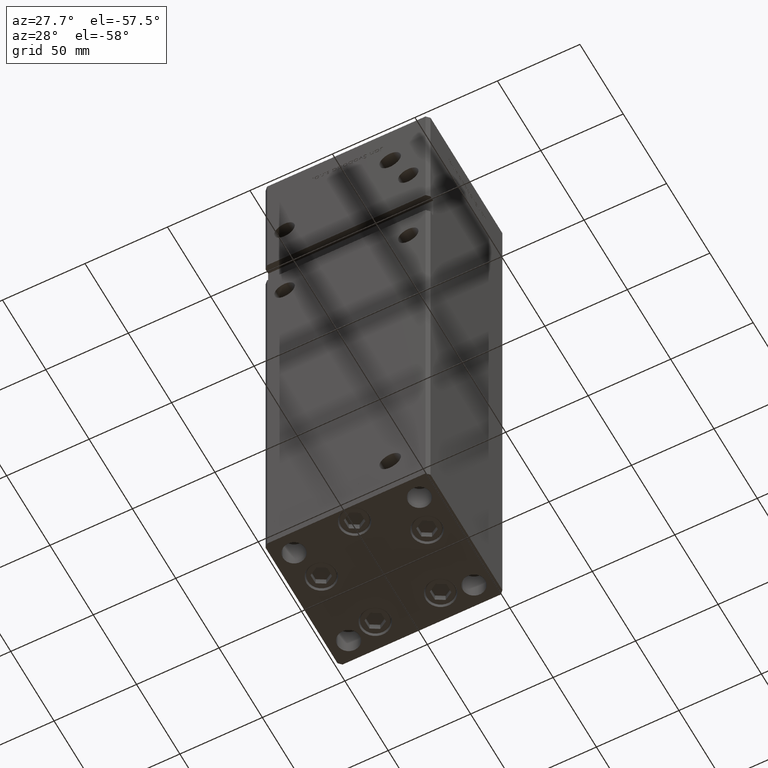
[diagram: clean part render]
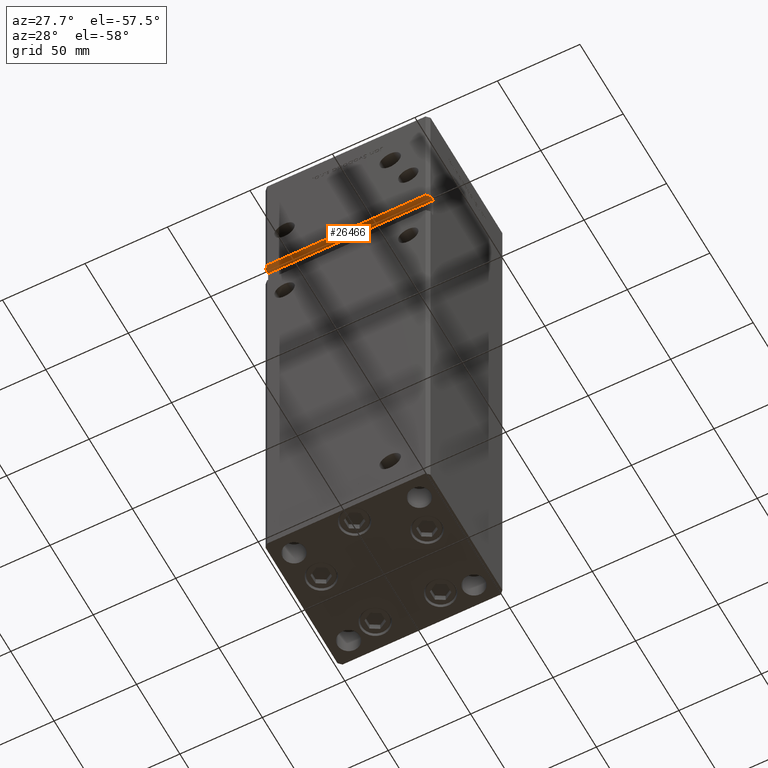
[diagram: same view with one face highlighted and labeled with its STEP entity id]
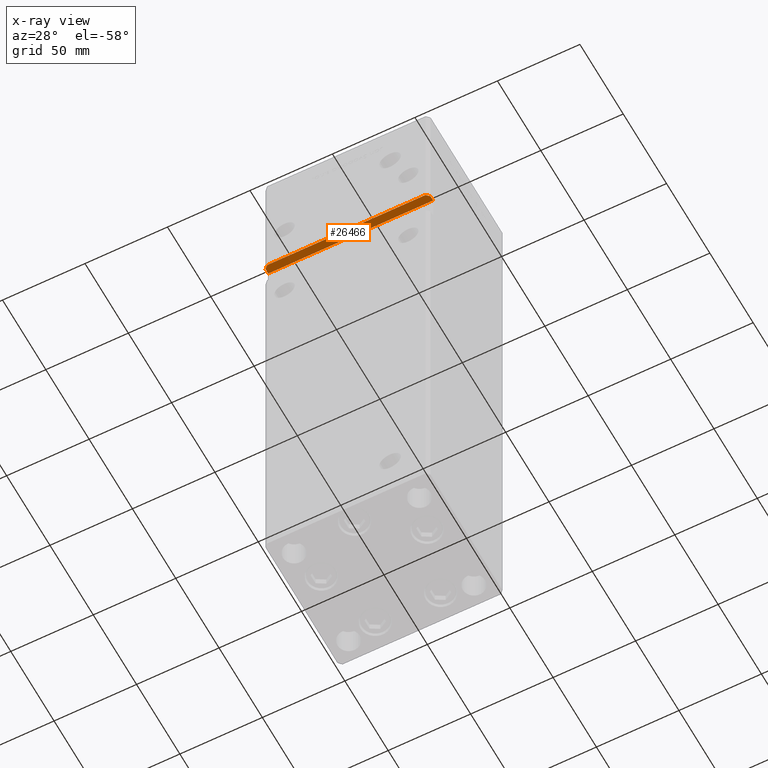
[diagram: x-ray of the same camera — body ghosted, the highlighted face saturated]
A machine part, auxiliary view. The second image highlights one B-rep face of the part: STEP entity #26466.
The next image is the same camera in x-ray: the body ghosted, the highlighted face saturated — about 0% of this face is hidden behind the body in this view.
In plain terms, the highlighted planar face has unit normal (0, 0, 1).
Its self-contained STEP definition (entity closure, byte-faithful):
#305 = VERTEX_POINT ( 'NONE', #27724 ) ;
#1275 = VECTOR ( 'NONE', #24989, 1000.000000000000114 ) ;
#3485 = LINE ( 'NONE', #20944, #1275 ) ;
#3845 = LINE ( 'NONE', #53091, #37499 ) ;
#6548 = LINE ( 'NONE', #39662, #22775 ) ;
#7675 = CARTESIAN_POINT ( 'NONE',  ( -49.99999999999998579, -38.50000000000000000, 259.0000000000000000 ) ) ;
#11891 = LINE ( 'NONE', #32346, #38184 ) ;
#11974 = DIRECTION ( 'NONE',  ( -0.000000000000000000, -1.000000000000000000, -0.000000000000000000 ) ) ;
#14650 = DIRECTION ( 'NONE',  ( 0.000000000000000000, 0.000000000000000000, 1.000000000000000000 ) ) ;
#17076 = CARTESIAN_POINT ( 'NONE',  ( 49.99999999999998579, -41.49999999999999289, 259.0000000000000000 ) ) ;
#18337 = EDGE_CURVE ( 'NONE', #36729, #27722, #19791, .T. ) ;
#19578 = LINE ( 'NONE', #27121, #25964 ) ;
#19791 = LINE ( 'NONE', #7675, #21307 ) ;
#20005 = ORIENTED_EDGE ( 'NONE', *, *, #34386, .T. ) ;
#20944 = CARTESIAN_POINT ( 'NONE',  ( -49.99999999999998579, -41.49999999999999289, 259.0000000000000000 ) ) ;
#21307 = VECTOR ( 'NONE', #11974, 1000.000000000000000 ) ;
#21921 = CARTESIAN_POINT ( 'NONE',  ( 47.99999999999998579, -43.50000000000000000, 259.0000000000000000 ) ) ;
#22775 = VECTOR ( 'NONE', #43168, 1000.000000000000000 ) ;
#22946 = VERTEX_POINT ( 'NONE', #21921 ) ;
#23261 = VERTEX_POINT ( 'NONE', #26088 ) ;
#24989 = DIRECTION ( 'NONE',  ( 0.7071067811865474617, -0.7071067811865474617, 0.000000000000000000 ) ) ;
#25964 = VECTOR ( 'NONE', #39233, 1000.000000000000114 ) ;
#26088 = CARTESIAN_POINT ( 'NONE',  ( -47.99999999999998579, -43.50000000000000000, 259.0000000000000000 ) ) ;
#26466 = ADVANCED_FACE ( 'NONE', ( #31871 ), #39682, .F. ) ;
#27121 = CARTESIAN_POINT ( 'NONE',  ( 49.99999999999998579, -41.49999999999999289, 259.0000000000000000 ) ) ;
#27722 = VERTEX_POINT ( 'NONE', #49055 ) ;
#27724 = CARTESIAN_POINT ( 'NONE',  ( 49.99999999999998579, -38.50000000000000000, 259.0000000000000000 ) ) ;
#31871 = FACE_OUTER_BOUND ( 'NONE', #42257, .T. ) ;
#32346 = CARTESIAN_POINT ( 'NONE',  ( 49.99999999999998579, -38.50000000000000000, 259.0000000000000000 ) ) ;
#32374 = DIRECTION ( 'NONE',  ( -1.000000000000000000, -0.000000000000000000, -0.000000000000000000 ) ) ;
#32826 = EDGE_CURVE ( 'NONE', #27722, #23261, #3485, .T. ) ;
#32877 = DIRECTION ( 'NONE',  ( -0.000000000000000000, -1.000000000000000000, -0.000000000000000000 ) ) ;
#33810 = AXIS2_PLACEMENT_3D ( 'NONE', #48014, #14650, #35910 ) ;
#34386 = EDGE_CURVE ( 'NONE', #41263, #22946, #19578, .T. ) ;
#35910 = DIRECTION ( 'NONE',  ( 1.000000000000000000, 0.000000000000000000, -0.000000000000000000 ) ) ;
#36729 = VERTEX_POINT ( 'NONE', #46541 ) ;
#37499 = VECTOR ( 'NONE', #32374, 1000.000000000000000 ) ;
#37717 = ORIENTED_EDGE ( 'NONE', *, *, #49206, .T. ) ;
#38184 = VECTOR ( 'NONE', #32877, 1000.000000000000000 ) ;
#39165 = ORIENTED_EDGE ( 'NONE', *, *, #42028, .F. ) ;
#39233 = DIRECTION ( 'NONE',  ( -0.7071067811865474617, -0.7071067811865474617, 0.000000000000000000 ) ) ;
#39339 = EDGE_CURVE ( 'NONE', #305, #41263, #11891, .T. ) ;
#39662 = CARTESIAN_POINT ( 'NONE',  ( -49.99999999999998579, -38.50000000000000000, 259.0000000000000000 ) ) ;
#39682 = PLANE ( 'NONE',  #33810 ) ;
#39967 = ORIENTED_EDGE ( 'NONE', *, *, #32826, .F. ) ;
#41263 = VERTEX_POINT ( 'NONE', #17076 ) ;
#42028 = EDGE_CURVE ( 'NONE', #305, #36729, #6548, .T. ) ;
#42257 = EDGE_LOOP ( 'NONE', ( #44177, #39165, #46877, #20005, #37717, #39967 ) ) ;
#43168 = DIRECTION ( 'NONE',  ( -1.000000000000000000, -0.000000000000000000, -0.000000000000000000 ) ) ;
#44177 = ORIENTED_EDGE ( 'NONE', *, *, #18337, .F. ) ;
#46541 = CARTESIAN_POINT ( 'NONE',  ( -49.99999999999998579, -38.50000000000000000, 259.0000000000000000 ) ) ;
#46877 = ORIENTED_EDGE ( 'NONE', *, *, #39339, .T. ) ;
#48014 = CARTESIAN_POINT ( 'NONE',  ( -49.99999999999998579, -38.50000000000000000, 259.0000000000000000 ) ) ;
#49055 = CARTESIAN_POINT ( 'NONE',  ( -49.99999999999998579, -41.49999999999999289, 259.0000000000000000 ) ) ;
#49206 = EDGE_CURVE ( 'NONE', #22946, #23261, #3845, .T. ) ;
#53091 = CARTESIAN_POINT ( 'NONE',  ( -49.99999999999998579, -43.50000000000000000, 259.0000000000000000 ) ) ;